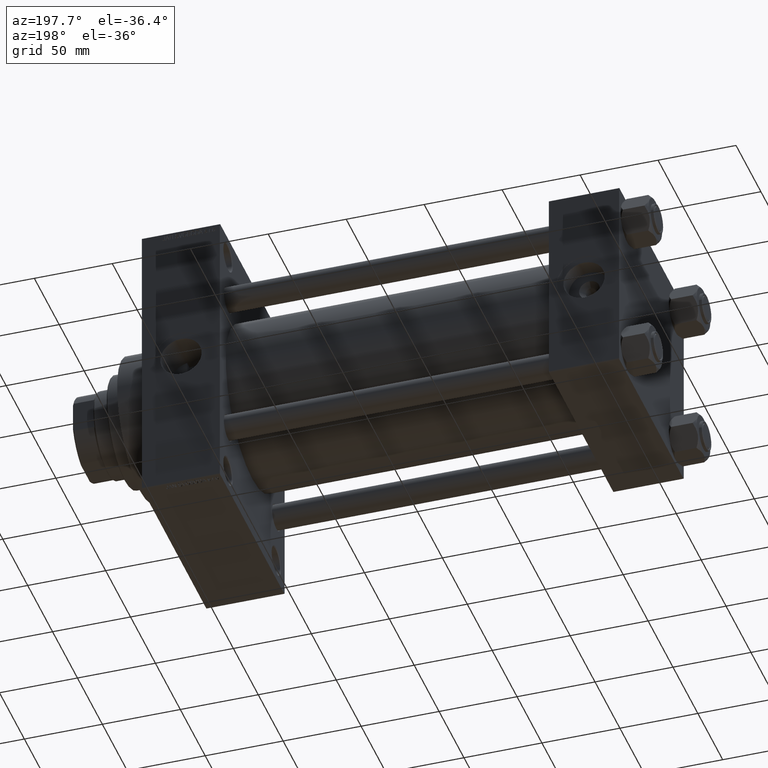
[diagram: clean part render]
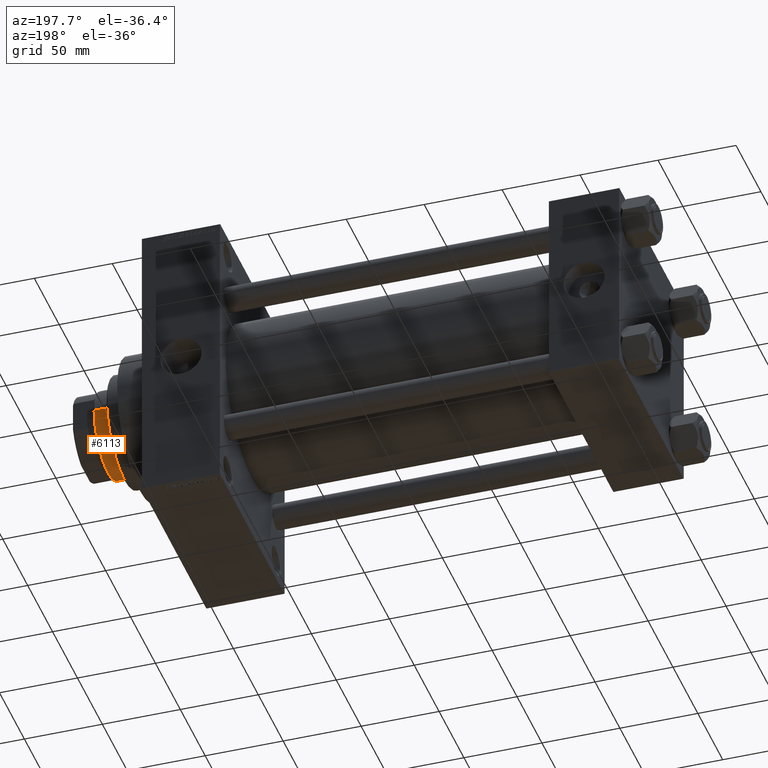
[diagram: same view with one face highlighted and labeled with its STEP entity id]
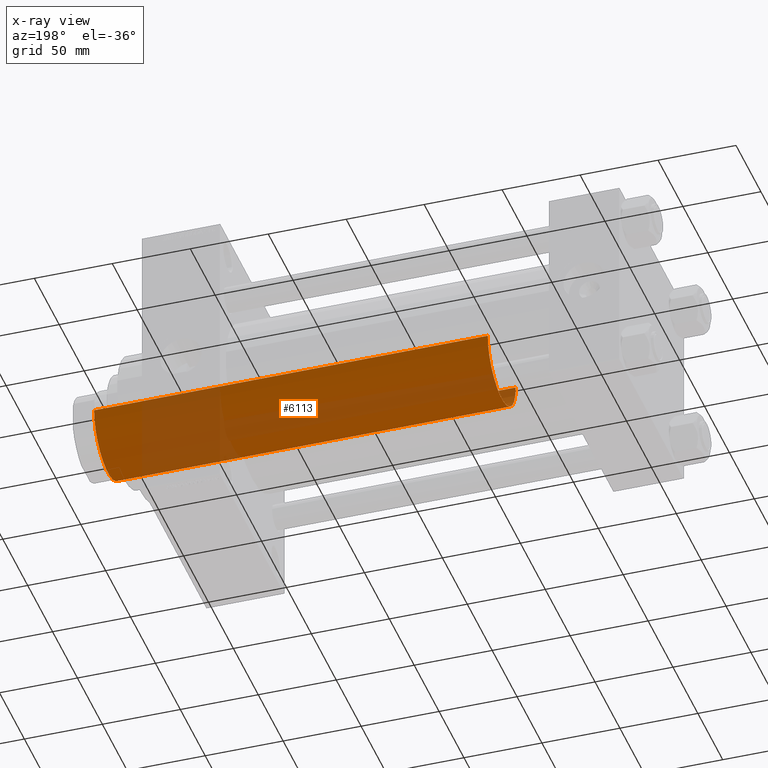
[diagram: x-ray of the same camera — body ghosted, the highlighted face saturated]
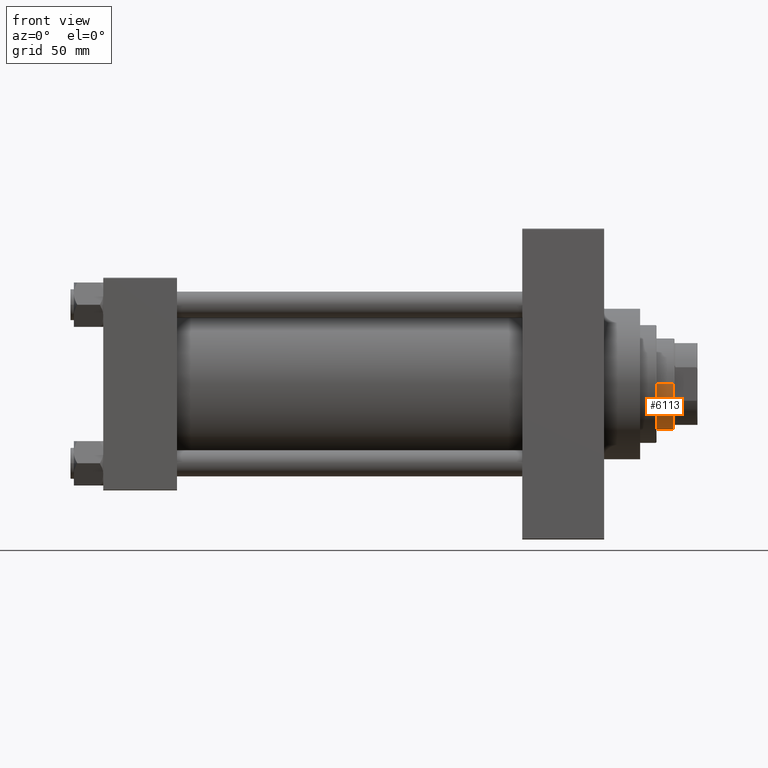
[diagram: same view with one face highlighted and labeled with its STEP entity id]
A machine part, auxiliary view. The second image highlights one B-rep face of the part: STEP entity #6113.
The next image is the same camera in x-ray: the body ghosted, the highlighted face saturated — about 39% of this face is hidden behind the body in this view.
A second angle (front view) of the same face is appended — the face is thin or edge-on in the first view.
In plain terms, the highlighted cylindrical surface (partial cylindrical patch) has radius 28 mm, axis along (-1, 0, 0).
Its self-contained STEP definition (entity closure, byte-faithful):
#1610 = DIRECTION ( 'NONE',  ( -0.000000000000000000, -0.000000000000000000, -1.000000000000000000 ) ) ;
#1726 = ORIENTED_EDGE ( 'NONE', *, *, #39096, .T. ) ;
#2383 = ORIENTED_EDGE ( 'NONE', *, *, #45565, .F. ) ;
#3010 = FACE_OUTER_BOUND ( 'NONE', #39810, .T. ) ;
#4676 = CIRCLE ( 'NONE', #17760, 28.00000000000000000 ) ;
#5190 = VERTEX_POINT ( 'NONE', #45713 ) ;
#6113 = ADVANCED_FACE ( 'NONE', ( #3010 ), #44286, .T. ) ;
#8733 = CIRCLE ( 'NONE', #42632, 28.00000000000000000 ) ;
#9110 = CARTESIAN_POINT ( 'NONE',  ( 28.00000000000000000, 3.429011037612589276E-15, 304.0000000000000000 ) ) ;
#11212 = DIRECTION ( 'NONE',  ( -0.000000000000000000, -0.000000000000000000, -1.000000000000000000 ) ) ;
#11276 = CARTESIAN_POINT ( 'NONE',  ( 0.000000000000000000, 0.000000000000000000, 51.00000000000000000 ) ) ;
#12205 = CARTESIAN_POINT ( 'NONE',  ( 0.000000000000000000, 0.000000000000000000, 303.4999999999999432 ) ) ;
#14335 = EDGE_CURVE ( 'NONE', #16820, #5190, #4676, .T. ) ;
#16820 = VERTEX_POINT ( 'NONE', #43135 ) ;
#17760 = AXIS2_PLACEMENT_3D ( 'NONE', #12205, #38045, #34420 ) ;
#20470 = LINE ( 'NONE', #42443, #41344 ) ;
#20679 = LINE ( 'NONE', #9110, #35778 ) ;
#21174 = DIRECTION ( 'NONE',  ( -0.000000000000000000, -0.000000000000000000, -1.000000000000000000 ) ) ;
#22246 = CARTESIAN_POINT ( 'NONE',  ( 28.00000000000000000, 3.429011037612589276E-15, 51.00000000000000000 ) ) ;
#25180 = ORIENTED_EDGE ( 'NONE', *, *, #14335, .T. ) ;
#29330 = CARTESIAN_POINT ( 'NONE',  ( 0.000000000000000000, 0.000000000000000000, 304.0000000000000000 ) ) ;
#29522 = CARTESIAN_POINT ( 'NONE',  ( -28.00000000000000000, 0.000000000000000000, 51.00000000000000000 ) ) ;
#32242 = AXIS2_PLACEMENT_3D ( 'NONE', #29330, #11212, #32718 ) ;
#32718 = DIRECTION ( 'NONE',  ( -1.000000000000000000, 0.000000000000000000, 0.000000000000000000 ) ) ;
#33741 = DIRECTION ( 'NONE',  ( 1.000000000000000000, 0.000000000000000000, 0.000000000000000000 ) ) ;
#34227 = DIRECTION ( 'NONE',  ( 0.000000000000000000, 0.000000000000000000, 1.000000000000000000 ) ) ;
#34420 = DIRECTION ( 'NONE',  ( 1.000000000000000000, 0.000000000000000000, 0.000000000000000000 ) ) ;
#35778 = VECTOR ( 'NONE', #1610, 1000.000000000000000 ) ;
#38045 = DIRECTION ( 'NONE',  ( 0.000000000000000000, 0.000000000000000000, -1.000000000000000000 ) ) ;
#39096 = EDGE_CURVE ( 'NONE', #47109, #39580, #8733, .T. ) ;
#39580 = VERTEX_POINT ( 'NONE', #29522 ) ;
#39810 = EDGE_LOOP ( 'NONE', ( #25180, #47088, #1726, #2383 ) ) ;
#41311 = EDGE_CURVE ( 'NONE', #5190, #47109, #20679, .T. ) ;
#41344 = VECTOR ( 'NONE', #21174, 1000.000000000000000 ) ;
#42443 = CARTESIAN_POINT ( 'NONE',  ( -28.00000000000000000, 0.000000000000000000, 304.0000000000000000 ) ) ;
#42632 = AXIS2_PLACEMENT_3D ( 'NONE', #11276, #34227, #33741 ) ;
#43135 = CARTESIAN_POINT ( 'NONE',  ( -28.00000000000000000, 0.000000000000000000, 303.4999999999999432 ) ) ;
#44286 = CYLINDRICAL_SURFACE ( 'NONE', #32242, 28.00000000000000000 ) ;
#45565 = EDGE_CURVE ( 'NONE', #16820, #39580, #20470, .T. ) ;
#45713 = CARTESIAN_POINT ( 'NONE',  ( 28.00000000000000000, 3.429011037612589276E-15, 303.4999999999999432 ) ) ;
#47088 = ORIENTED_EDGE ( 'NONE', *, *, #41311, .T. ) ;
#47109 = VERTEX_POINT ( 'NONE', #22246 ) ;